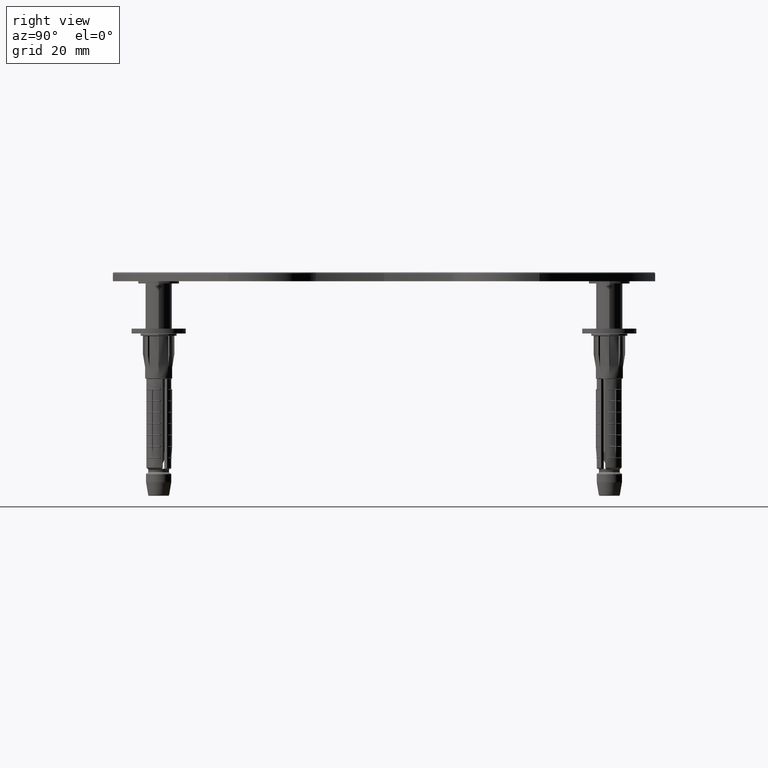
[diagram: clean part render]
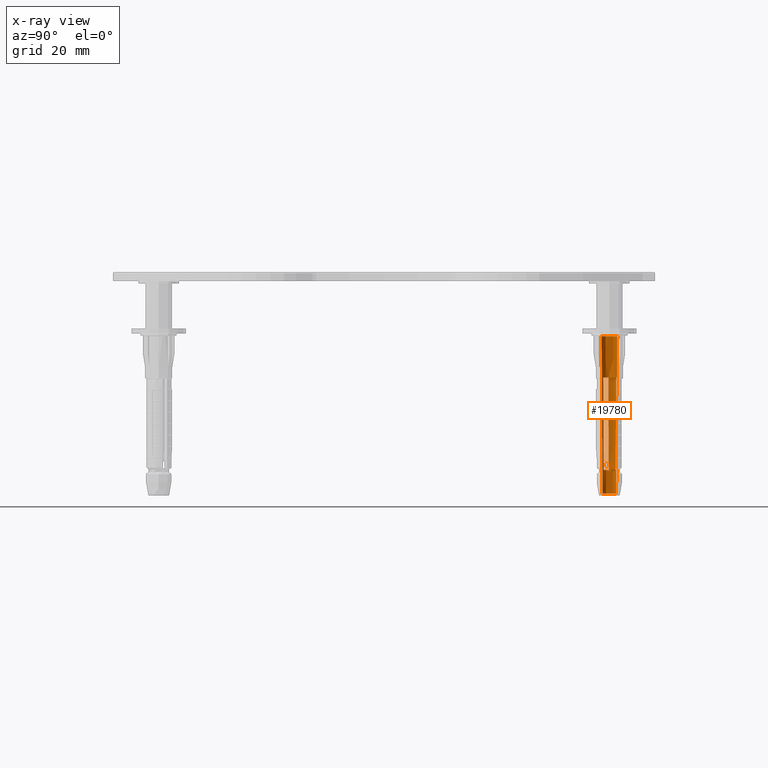
[diagram: x-ray — body ghosted, one internal face saturated and labeled with its STEP entity id]
A machine part, right view, then the same camera in x-ray: the body is ghosted and one INTERNAL B-rep face — a face not visible from any outside direction — is saturated and labeled: STEP entity #19780.
In plain terms, the highlighted conical surface has half-angle 0.401 deg.
Its self-contained STEP definition (entity closure, byte-faithful):
#1082 = CARTESIAN_POINT ( 'NONE',  ( 0.000000000000000000, -1.501736026510467337, -35.50174820900318196 ) ) ;
#1284 = CARTESIAN_POINT ( 'NONE',  ( 0.000000000000000000, -1.745783028158170547, -0.6030269733816054911 ) ) ;
#1530 = DIRECTION ( 'NONE',  ( 0.000000000000000000, -0.006992836012750656971, 0.9999755498233438011 ) ) ;
#1552 = CARTESIAN_POINT ( 'NONE',  ( 0.8880129610593886502, 1.257744870701107631, -30.08158984277008585 ) ) ;
#1665 = VERTEX_POINT ( 'NONE', #3003 ) ;
#1708 = CIRCLE ( 'NONE', #8319, 1.681830407055966647 ) ;
#1942 = CARTESIAN_POINT ( 'NONE',  ( 0.6505592292629955864, -1.500253304582922942, -16.41511596006032647 ) ) ;
#2168 = FACE_OUTER_BOUND ( 'NONE', #38085, .T. ) ;
#2335 = CARTESIAN_POINT ( 'NONE',  ( 0.6453687631197588814, -1.400418208720784152, -29.74826594235975463 ) ) ;
#2363 = CIRCLE ( 'NONE', #33432, 1.538473763699323094 ) ;
#2640 = ORIENTED_EDGE ( 'NONE', *, *, #23658, .T. ) ;
#2665 = VERTEX_POINT ( 'NONE', #6883 ) ;
#2688 = CARTESIAN_POINT ( 'NONE',  ( 1.668732476293493638, 0.2094885215505198628, -9.748251790996814492 ) ) ;
#2772 = B_SPLINE_CURVE_WITH_KNOTS ( 'NONE', 3,
 ( #14072, #1552, #26159, #37739, #7613, #26030, #11208, #38133, #31817, #13685, #4854, #8016, #16704 ),
 .UNSPECIFIED., .F., .F.,
 ( 4, 3, 3, 3, 4 ),
 ( 0.000000000000000000, 0.0005000000000004143925, 0.002500000000050580685, 0.01050000000305951336, 0.02050057427464647627 ),
 .UNSPECIFIED. ) ;
#3003 = CARTESIAN_POINT ( 'NONE',  ( 0.000000000000000000, -1.538473763699322872, -30.24825179099682870 ) ) ;
#3128 = DIRECTION ( 'NONE',  ( 0.000000000000000000, -1.000000000000000000, 0.000000000000000000 ) ) ;
#3387 = DIRECTION ( 'NONE',  ( 0.000000000000000000, 1.712792726080124458E-19, 1.000000000000000000 ) ) ;
#3468 = CARTESIAN_POINT ( 'NONE',  ( 0.6517727107708675138, -1.525107535580936924, -13.08168407891747087 ) ) ;
#4078 = VERTEX_POINT ( 'NONE', #1082 ) ;
#4854 = CARTESIAN_POINT ( 'NONE',  ( 0.9739778592488662623, 1.313527471499640331, -16.41511596006032647 ) ) ;
#5258 = VERTEX_POINT ( 'NONE', #7182 ) ;
#5769 = DIRECTION ( 'NONE',  ( 0.000000000000000000, 1.712792726080124458E-19, 1.000000000000000000 ) ) ;
#5856 = CARTESIAN_POINT ( 'NONE',  ( 1.576789889387851584, 0.1622946023761522027, -23.58139049783190799 ) ) ;
#5984 = CARTESIAN_POINT ( 'NONE',  ( 1.532126853353173113, 0.1396023883222116124, -30.24825179099680739 ) ) ;
#6242 = DIRECTION ( 'NONE',  ( 8.563754239977431897E-19, 0.006992836012750656971, 0.9999755498233438011 ) ) ;
#6265 = CIRCLE ( 'NONE', #33842, 1.538473763699323094 ) ;
#6361 = VERTEX_POINT ( 'NONE', #20338 ) ;
#6478 = ORIENTED_EDGE ( 'NONE', *, *, #27998, .T. ) ;
#6883 = CARTESIAN_POINT ( 'NONE',  ( 2.137967597439677086E-16, 1.745783028158170547, -0.6030269733816054911 ) ) ;
#7002 = VERTEX_POINT ( 'NONE', #1284 ) ;
#7182 = CARTESIAN_POINT ( 'NONE',  ( 0.8869626413926015029, 1.257059582663057284, -30.24825179099680739 ) ) ;
#7613 = CARTESIAN_POINT ( 'NONE',  ( 0.8943140097352603179, 1.261854405129790191, -29.08161813890516356 ) ) ;
#7833 = VERTEX_POINT ( 'NONE', #25004 ) ;
#7931 = CARTESIAN_POINT ( 'NONE',  ( 1.015788619610740406, 1.340420455815019229, -9.748251790996814492 ) ) ;
#7987 = EDGE_CURVE ( 'NONE', #29064, #2665, #32335, .T. ) ;
#8016 = CARTESIAN_POINT ( 'NONE',  ( 0.9948955139307371631, 1.327005492811487386, -13.08168407891747087 ) ) ;
#8319 = AXIS2_PLACEMENT_3D ( 'NONE', #22519, #28182, #22655 ) ;
#8403 = CARTESIAN_POINT ( 'NONE',  ( 0.6472510597482427075, -1.435442561835776898, -25.08173108936442475 ) ) ;
#8509 = DIRECTION ( 'NONE',  ( -1.776356839400250465E-15, -1.000000000000000000, 0.000000000000000000 ) ) ;
#8645 = DIRECTION ( 'NONE',  ( 0.000000000000000000, 1.000000000000000000, 0.000000000000000000 ) ) ;
#9058 = DIRECTION ( 'NONE',  ( 0.000000000000000000, 6.803593328596413297E-18, 1.000000000000000000 ) ) ;
#9830 = CARTESIAN_POINT ( 'NONE',  ( 0.6529438566827530099, -1.549908977365538787, -9.748251790996814492 ) ) ;
#10129 = EDGE_CURVE ( 'NONE', #4078, #1665, #23282, .T. ) ;
#10282 = CARTESIAN_POINT ( 'NONE',  ( 0.6492984556952973163, -1.475339807804667336, -19.74854737969049623 ) ) ;
#10324 = DIRECTION ( 'NONE',  ( 1.776356839400250465E-15, 1.000000000000000000, 0.000000000000000000 ) ) ;
#10582 = DIRECTION ( 'NONE',  ( 0.000000000000000000, 6.803593328596413297E-18, 1.000000000000000000 ) ) ;
#10712 = CARTESIAN_POINT ( 'NONE',  ( 0.000000000000000000, -5.180898564425945676E-18, -30.24825179099682870 ) ) ;
#11127 = AXIS2_PLACEMENT_3D ( 'NONE', #14840, #5769, #11982 ) ;
#11208 = CARTESIAN_POINT ( 'NONE',  ( 0.9027115561000608190, 1.267324053805257256, -27.74832246951416082 ) ) ;
#11818 = CARTESIAN_POINT ( 'NONE',  ( 1.667629327064346967, 0.2089192303041016996, -9.914913834507210311 ) ) ;
#11938 = CARTESIAN_POINT ( 'NONE',  ( 1.652172560847955829, 0.2009510954124484050, -12.24818236635587709 ) ) ;
#11957 = CARTESIAN_POINT ( 'NONE',  ( 0.000000000000000000, -1.500000000000000000, -35.75000000000000000 ) ) ;
#11982 = DIRECTION ( 'NONE',  ( 0.000000000000000000, -1.000000000000000000, 0.000000000000000000 ) ) ;
#12707 = CIRCLE ( 'NONE', #30948, 1.681830407055966425 ) ;
#13685 = CARTESIAN_POINT ( 'NONE',  ( 0.9530325249256442754, 1.299978861172466083, -19.74854737969049623 ) ) ;
#14072 = CARTESIAN_POINT ( 'NONE',  ( 0.8869626413926015029, 1.257059582663057284, -30.24825179099680739 ) ) ;
#14577 = CARTESIAN_POINT ( 'NONE',  ( 0.6461790473723990624, -1.415433166775063034, -27.74832246951416082 ) ) ;
#14840 = CARTESIAN_POINT ( 'NONE',  ( 0.000000000000000000, -6.123233995736444329E-18, -35.75000000000000000 ) ) ;
#15113 = EDGE_CURVE ( 'NONE', #6361, #37771, #19291, .T. ) ;
#15329 = ORIENTED_EDGE ( 'NONE', *, *, #19107, .T. ) ;
#16196 = AXIS2_PLACEMENT_3D ( 'NONE', #27507, #3387, #3128 ) ;
#16292 = FACE_BOUND ( 'NONE', #35289, .T. ) ;
#16704 = CARTESIAN_POINT ( 'NONE',  ( 1.015788619610740406, 1.340420455815019229, -9.748251790996814492 ) ) ;
#17055 = DIRECTION ( 'NONE',  ( -0.000000000000000000, -1.712792726080124458E-19, -1.000000000000000000 ) ) ;
#17147 = EDGE_CURVE ( 'NONE', #5258, #30596, #2772, .T. ) ;
#17593 = DIRECTION ( 'NONE',  ( 0.000000000000000000, -0.006992836012750656971, 0.9999755498233438011 ) ) ;
#17842 = CARTESIAN_POINT ( 'NONE',  ( 1.665422525302646894, 0.2077807250073455680, -10.24823791846003118 ) ) ;
#18118 = EDGE_CURVE ( 'NONE', #33951, #7833, #29491, .T. ) ;
#19107 = EDGE_CURVE ( 'NONE', #37771, #28935, #1708, .T. ) ;
#19112 = ORIENTED_EDGE ( 'NONE', *, *, #38704, .T. ) ;
#19131 = ORIENTED_EDGE ( 'NONE', *, *, #10129, .T. ) ;
#19291 = B_SPLINE_CURVE_WITH_KNOTS ( 'NONE', 3,
 ( #38379, #32587, #20892, #2335, #23379, #26411, #14577, #8403, #25048, #10282, #1942, #3468, #9830 ),
 .UNSPECIFIED., .F., .F.,
 ( 4, 3, 3, 3, 4 ),
 ( 0.000000000000000000, 0.0005000000000004143925, 0.002500000000050580685, 0.01050000000305951336, 0.02050057427464647627 ),
 .UNSPECIFIED. ) ;
#19780 = ADVANCED_FACE ( 'NONE', ( #2168, #16292 ), #35131, .F. ) ;
#20069 = DIRECTION ( 'NONE',  ( 0.000000000000000000, -1.000000000000000000, 0.000000000000000000 ) ) ;
#20338 = CARTESIAN_POINT ( 'NONE',  ( 0.6451642119605712766, -1.396661970985268786, -30.24825179099680739 ) ) ;
#20866 = CARTESIAN_POINT ( 'NONE',  ( 1.616773400997852717, 0.1827488338190830786, -17.58136715940376860 ) ) ;
#20892 = CARTESIAN_POINT ( 'NONE',  ( 0.6453007124366823000, -1.399166297412006710, -29.91492789322138179 ) ) ;
#21716 = LINE ( 'NONE', #11957, #35385 ) ;
#21905 = ORIENTED_EDGE ( 'NONE', *, *, #18118, .T. ) ;
#22519 = CARTESIAN_POINT ( 'NONE',  ( 0.000000000000000000, 3.433350391091640607E-16, -9.748251790996814492 ) ) ;
#22655 = DIRECTION ( 'NONE',  ( 5.329070518200751394E-15, -1.000000000000000000, 0.000000000000000000 ) ) ;
#22843 = CARTESIAN_POINT ( 'NONE',  ( 1.988531907734992781E-16, 1.501736026510467337, -35.50174820900318196 ) ) ;
#22852 = DIRECTION ( 'NONE',  ( -0.000000000000000000, -1.712792726080124458E-19, -1.000000000000000000 ) ) ;
#23041 = EDGE_CURVE ( 'NONE', #7833, #5258, #6265, .T. ) ;
#23152 = EDGE_CURVE ( 'NONE', #7002, #2665, #31691, .T. ) ;
#23282 = LINE ( 'NONE', #27630, #32712 ) ;
#23379 = CARTESIAN_POINT ( 'NONE',  ( 0.6456409658520689820, -1.405425853955954318, -29.08161813890516356 ) ) ;
#23658 = EDGE_CURVE ( 'NONE', #29064, #4078, #28388, .T. ) ;
#23834 = ORIENTED_EDGE ( 'NONE', *, *, #17147, .T. ) ;
#23872 = CARTESIAN_POINT ( 'NONE',  ( 1.599003518319578987, 0.1736583543094187554, -20.24795912438024814 ) ) ;
#24007 = CARTESIAN_POINT ( 'NONE',  ( 1.656591950557989357, 0.2032272201278825796, -11.58153423375303603 ) ) ;
#24336 = VECTOR ( 'NONE', #6242, 1000.000000000000000 ) ;
#24469 = CARTESIAN_POINT ( 'NONE',  ( 0.6529438566827530099, -1.549908977365538787, -9.748251790996814492 ) ) ;
#25004 = CARTESIAN_POINT ( 'NONE',  ( 1.532126853353173113, 0.1396023883222116124, -30.24825179099680739 ) ) ;
#25048 = CARTESIAN_POINT ( 'NONE',  ( 0.6482898947594840644, -1.455410154876639606, -22.41513938176526111 ) ) ;
#26030 = CARTESIAN_POINT ( 'NONE',  ( 0.8985133965385434518, 1.264590781935484465, -28.41497031443465815 ) ) ;
#26159 = CARTESIAN_POINT ( 'NONE',  ( 0.8890632014594700427, 1.258429958756367206, -29.91492789322138179 ) ) ;
#26380 = CARTESIAN_POINT ( 'NONE',  ( 0.000000000000000000, 3.433350391091640607E-16, -9.748251790996814492 ) ) ;
#26411 = CARTESIAN_POINT ( 'NONE',  ( 0.6459110442784851136, -1.410430818010761866, -28.41497031443465815 ) ) ;
#26432 = EDGE_CURVE ( 'NONE', #1665, #6361, #2363, .T. ) ;
#26924 = CARTESIAN_POINT ( 'NONE',  ( 1.554500871815585716, 0.1509422293871669485, -26.91482140879552176 ) ) ;
#27507 = CARTESIAN_POINT ( 'NONE',  ( 0.000000000000000000, -5.588095458173432147E-19, -0.6030269733816054911 ) ) ;
#27630 = CARTESIAN_POINT ( 'NONE',  ( 0.000000000000000000, -1.500000000000000000, -35.75000000000000000 ) ) ;
#27998 = EDGE_CURVE ( 'NONE', #30596, #33951, #12707, .T. ) ;
#28182 = DIRECTION ( 'NONE',  ( -0.000000000000000000, -1.712792726080124458E-19, -1.000000000000000000 ) ) ;
#28388 = CIRCLE ( 'NONE', #29572, 1.501736026510467337 ) ;
#28747 = CARTESIAN_POINT ( 'NONE',  ( 1.668732476293493638, 0.2094885215505198628, -9.748251790996814492 ) ) ;
#28935 = VERTEX_POINT ( 'NONE', #33897 ) ;
#29064 = VERTEX_POINT ( 'NONE', #22843 ) ;
#29241 = ORIENTED_EDGE ( 'NONE', *, *, #7987, .F. ) ;
#29491 = B_SPLINE_CURVE_WITH_KNOTS ( 'NONE', 3,
 ( #2688, #11818, #32817, #17842, #38871, #24007, #11938, #30066, #20866, #23872, #5856, #26924, #5984 ),
 .UNSPECIFIED., .F., .F.,
 ( 4, 3, 3, 3, 4 ),
 ( 0.000000000000000000, 0.0005000000000002581589, 0.002500000000033156256, 0.01050000000240637263, 0.02050057427441492885 ),
 .UNSPECIFIED. ) ;
#29572 = AXIS2_PLACEMENT_3D ( 'NONE', #34952, #22852, #20069 ) ;
#29728 = ORIENTED_EDGE ( 'NONE', *, *, #23152, .T. ) ;
#29814 = CARTESIAN_POINT ( 'NONE',  ( 0.000000000000000000, -5.180898564425945676E-18, -30.24825179099682870 ) ) ;
#30066 = CARTESIAN_POINT ( 'NONE',  ( 1.634495002005344366, 0.1918465965494355885, -14.91477489714101168 ) ) ;
#30552 = ORIENTED_EDGE ( 'NONE', *, *, #23041, .T. ) ;
#30596 = VERTEX_POINT ( 'NONE', #7931 ) ;
#30948 = AXIS2_PLACEMENT_3D ( 'NONE', #26380, #17055, #8509 ) ;
#31691 = CIRCLE ( 'NONE', #16196, 1.745783028158170325 ) ;
#31817 = CARTESIAN_POINT ( 'NONE',  ( 0.9362772196692720206, 1.289140595316773386, -22.41513938176526111 ) ) ;
#32335 = LINE ( 'NONE', #33493, #24336 ) ;
#32587 = CARTESIAN_POINT ( 'NONE',  ( 0.6452325289770389771, -1.397914218517826157, -30.08158984277008585 ) ) ;
#32712 = VECTOR ( 'NONE', #1530, 1000.000000000000000 ) ;
#32817 = CARTESIAN_POINT ( 'NONE',  ( 1.666526010379683731, 0.2083499647477308481, -10.08157587699704649 ) ) ;
#33432 = AXIS2_PLACEMENT_3D ( 'NONE', #29814, #9058, #8645 ) ;
#33493 = CARTESIAN_POINT ( 'NONE',  ( 1.836970198721029934E-16, 1.500000000000000000, -35.75000000000000000 ) ) ;
#33842 = AXIS2_PLACEMENT_3D ( 'NONE', #10712, #10582, #10324 ) ;
#33878 = ORIENTED_EDGE ( 'NONE', *, *, #15113, .T. ) ;
#33897 = CARTESIAN_POINT ( 'NONE',  ( 0.000000000000000000, -1.681830407055966203, -9.748251790996814492 ) ) ;
#33951 = VERTEX_POINT ( 'NONE', #28747 ) ;
#34952 = CARTESIAN_POINT ( 'NONE',  ( 0.000000000000000000, -6.080713609550873326E-18, -35.50174820900318196 ) ) ;
#35131 = CONICAL_SURFACE ( 'NONE', #11127, 1.500000000000000000, 0.006992893005333328423 ) ;
#35289 = EDGE_LOOP ( 'NONE', ( #30552, #23834, #6478, #21905 ) ) ;
#35385 = VECTOR ( 'NONE', #17593, 1000.000000000000000 ) ;
#35514 = ORIENTED_EDGE ( 'NONE', *, *, #26432, .T. ) ;
#37739 = CARTESIAN_POINT ( 'NONE',  ( 0.8901133631146178615, 1.259114848031045009, -29.74826594235975463 ) ) ;
#37771 = VERTEX_POINT ( 'NONE', #24469 ) ;
#38085 = EDGE_LOOP ( 'NONE', ( #29241, #2640, #19131, #35514, #33878, #15329, #19112, #29728 ) ) ;
#38133 = CARTESIAN_POINT ( 'NONE',  ( 0.9195041943490761538, 1.278257141286266441, -25.08173108936442475 ) ) ;
#38379 = CARTESIAN_POINT ( 'NONE',  ( 0.6451642119605712766, -1.396661970985268786, -30.24825179099680739 ) ) ;
#38704 = EDGE_CURVE ( 'NONE', #28935, #7002, #21716, .T. ) ;
#38871 = CARTESIAN_POINT ( 'NONE',  ( 1.661008584994464243, 0.2055037660457863791, -10.91488608431727592 ) ) ;